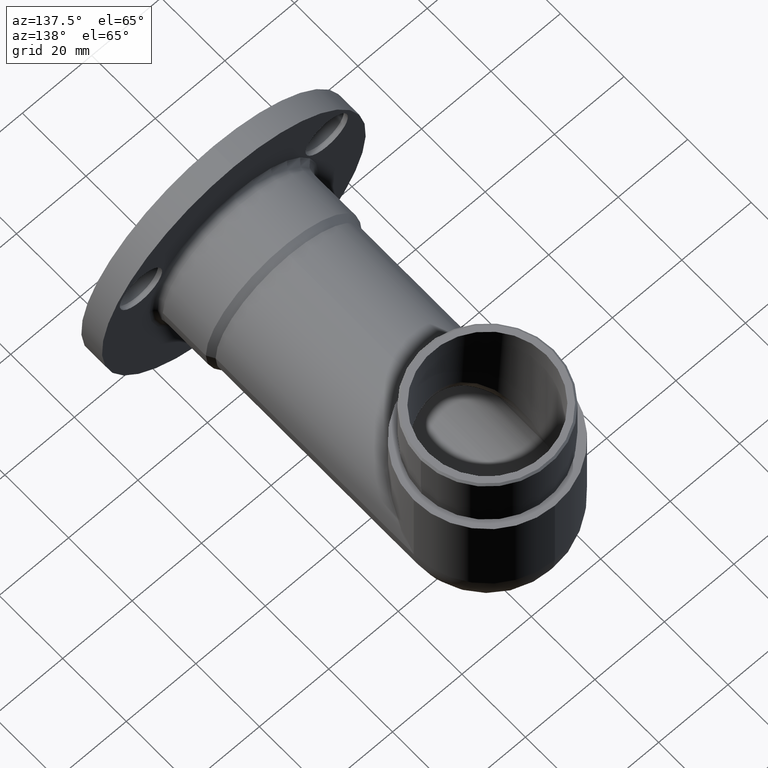
[diagram: clean part render]
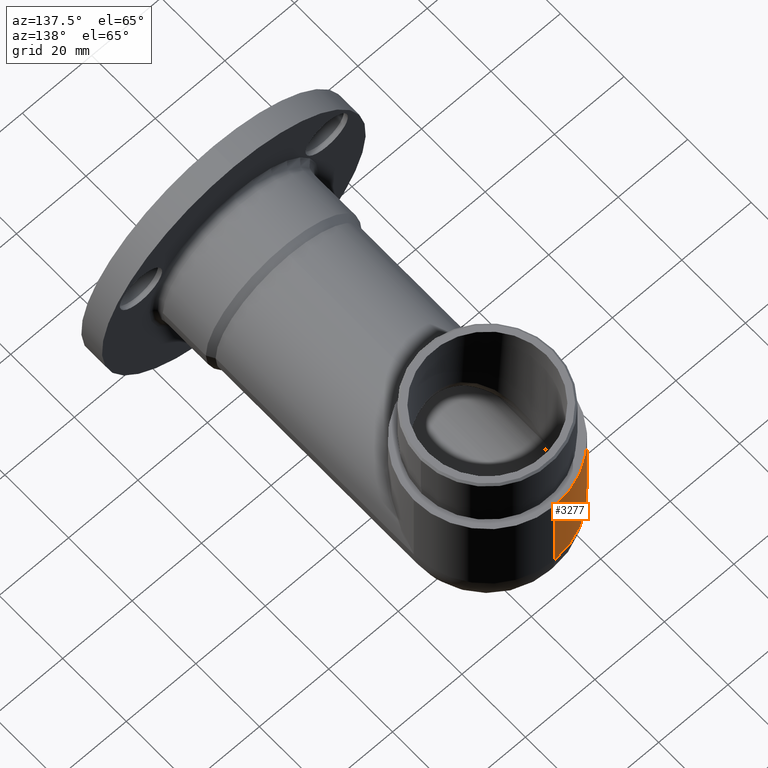
[diagram: same view with one face highlighted and labeled with its STEP entity id]
A machine part, auxiliary view. The second image highlights one B-rep face of the part: STEP entity #3277.
In plain terms, the highlighted cylindrical surface (partial cylindrical patch) has radius 21.2 mm, axis along (0, 0, 1).
Its self-contained STEP definition (entity closure, byte-faithful):
#754 = DIRECTION ( 'NONE',  ( 1.000000000000000000, 0.0000000000000000000, 0.0000000000000000000 ) ) ;
#919 = CARTESIAN_POINT ( 'NONE',  ( 3.469446951953614200E-015, 86.20000000000003100, -21.20000000000000300 ) ) ;
#1392 = AXIS2_PLACEMENT_3D ( 'NONE', #919, #1927, #754 ) ;
#1927 = DIRECTION ( 'NONE',  ( 0.0000000000000000000, 0.0000000000000000000, 1.000000000000000000 ) ) ;
#2207 = VECTOR ( 'NONE', #11623, 1000.000000000000000 ) ;
#2245 = CARTESIAN_POINT ( 'NONE',  ( 3.469446951953614200E-015, 86.20000000000003100, 27.30000000000000400 ) ) ;
#2444 = VERTEX_POINT ( 'NONE', #8398 ) ;
#2528 = VERTEX_POINT ( 'NONE', #8648 ) ;
#3075 = VECTOR ( 'NONE', #5170, 1000.000000000000000 ) ;
#3084 = ORIENTED_EDGE ( 'NONE', *, *, #9690, .F. ) ;
#3252 = VERTEX_POINT ( 'NONE', #4316 ) ;
#3277 = ADVANCED_FACE ( 'NONE', ( #9649 ), #9106, .T. ) ;
#3418 = CARTESIAN_POINT ( 'NONE',  ( 3.469446951953615000E-015, 86.20000000000003100, -3.469446951953613800E-015 ) ) ;
#4316 = CARTESIAN_POINT ( 'NONE',  ( 3.469446951953614200E-015, 107.4000000000000200, -3.469446951953614200E-015 ) ) ;
#4492 = CARTESIAN_POINT ( 'NONE',  ( 6.938893903907228400E-015, 107.4000000000000200, -21.20000000000000300 ) ) ;
#4627 = DIRECTION ( 'NONE',  ( 1.000000000000000000, 0.0000000000000000000, 0.0000000000000000000 ) ) ;
#5040 = AXIS2_PLACEMENT_3D ( 'NONE', #3418, #11577, #6862 ) ;
#5170 = DIRECTION ( 'NONE',  ( -0.0000000000000000000, -0.0000000000000000000, -1.000000000000000000 ) ) ;
#6292 = ORIENTED_EDGE ( 'NONE', *, *, #12794, .F. ) ;
#6862 = DIRECTION ( 'NONE',  ( 1.000000000000000000, 0.0000000000000000000, 1.816915041874750800E-032 ) ) ;
#7952 = ORIENTED_EDGE ( 'NONE', *, *, #13431, .T. ) ;
#8358 = EDGE_CURVE ( 'NONE', #2444, #3252, #11585, .T. ) ;
#8398 = CARTESIAN_POINT ( 'NONE',  ( 6.938893903907228400E-015, 107.4000000000000200, 27.30000000000000400 ) ) ;
#8465 = CIRCLE ( 'NONE', #10522, 21.19999999999999900 ) ;
#8648 = CARTESIAN_POINT ( 'NONE',  ( -21.19999999999999600, 86.20000000000003100, 27.30000000000000400 ) ) ;
#9106 = CYLINDRICAL_SURFACE ( 'NONE', #1392, 21.19999999999999900 ) ;
#9649 = FACE_OUTER_BOUND ( 'NONE', #12498, .T. ) ;
#9690 = EDGE_CURVE ( 'NONE', #2444, #2528, #8465, .T. ) ;
#9896 = VERTEX_POINT ( 'NONE', #13490 ) ;
#10024 = ORIENTED_EDGE ( 'NONE', *, *, #8358, .T. ) ;
#10522 = AXIS2_PLACEMENT_3D ( 'NONE', #2245, #11645, #4627 ) ;
#11529 = CIRCLE ( 'NONE', #5040, 21.19999999999999900 ) ;
#11577 = DIRECTION ( 'NONE',  ( -1.816915041874750600E-032, 0.0000000000000000000, 1.000000000000000000 ) ) ;
#11585 = LINE ( 'NONE', #4492, #2207 ) ;
#11623 = DIRECTION ( 'NONE',  ( -0.0000000000000000000, -0.0000000000000000000, -1.000000000000000000 ) ) ;
#11645 = DIRECTION ( 'NONE',  ( 0.0000000000000000000, 0.0000000000000000000, 1.000000000000000000 ) ) ;
#12498 = EDGE_LOOP ( 'NONE', ( #7952, #6292, #3084, #10024 ) ) ;
#12794 = EDGE_CURVE ( 'NONE', #2528, #9896, #14341, .T. ) ;
#13431 = EDGE_CURVE ( 'NONE', #3252, #9896, #11529, .T. ) ;
#13490 = CARTESIAN_POINT ( 'NONE',  ( -21.19999999999999600, 86.20000000000004500, -3.469446951953614200E-015 ) ) ;
#14341 = LINE ( 'NONE', #14916, #3075 ) ;
#14916 = CARTESIAN_POINT ( 'NONE',  ( -21.19999999999999600, 86.20000000000003100, -19.38132752230960800 ) ) ;